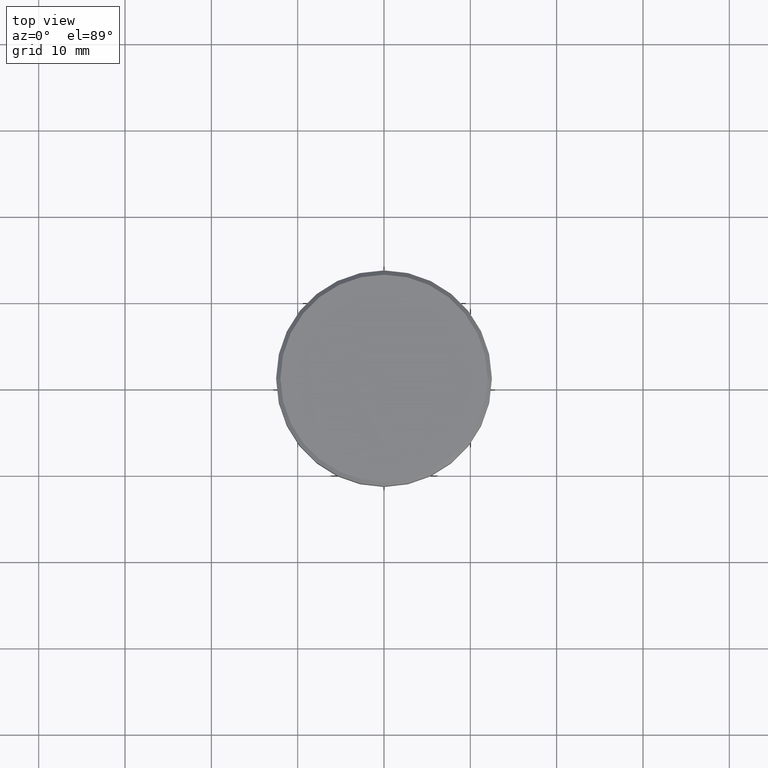
[diagram: clean part render]
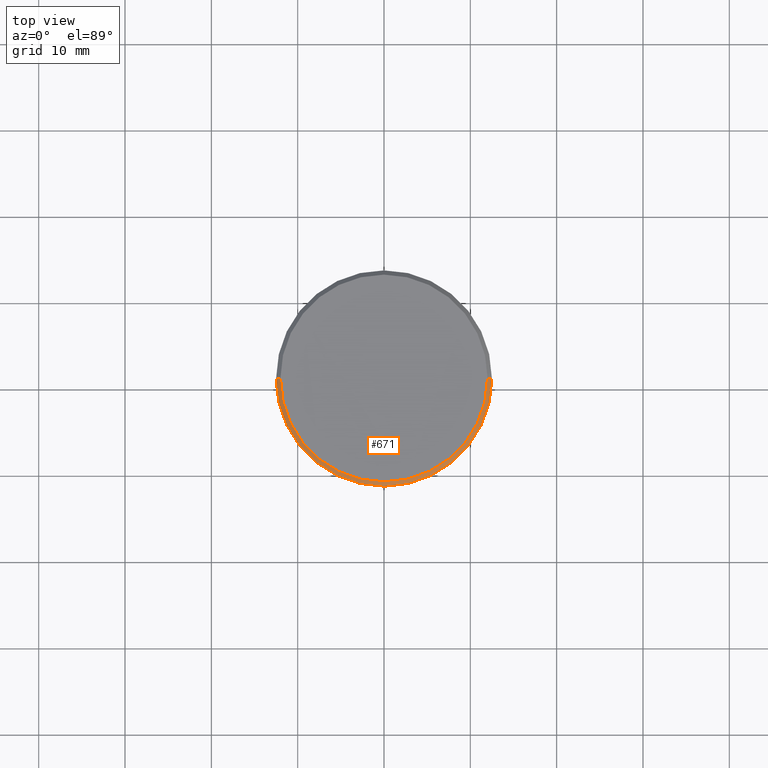
[diagram: same view with one face highlighted and labeled with its STEP entity id]
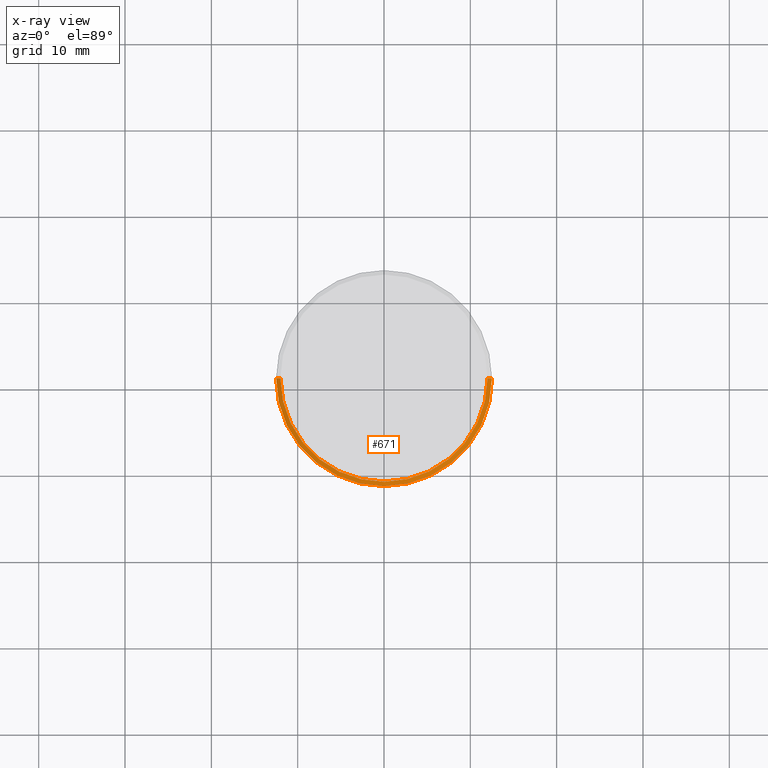
[diagram: x-ray of the same camera — body ghosted, the highlighted face saturated]
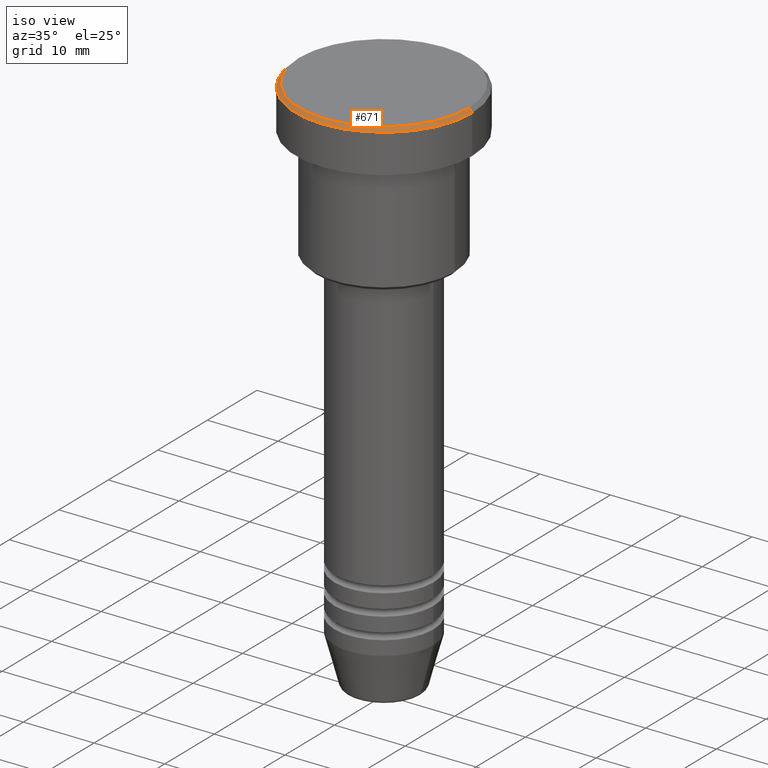
[diagram: same view with one face highlighted and labeled with its STEP entity id]
A machine part, top view. The second image highlights one B-rep face of the part: STEP entity #671.
The next image is the same camera in x-ray: the body ghosted, the highlighted face saturated — about 0% of this face is hidden behind the body in this view.
A second angle (iso view) of the same face is appended — the face is thin or edge-on in the first view.
In plain terms, the highlighted conical surface has half-angle 45 deg.
Its self-contained STEP definition (entity closure, byte-faithful):
#36 = CARTESIAN_POINT ( 'NONE',  ( -12.00000000000000355, 0.000000000000000000, 0.000000000000000000 ) ) ;
#72 = CARTESIAN_POINT ( 'NONE',  ( 0.000000000000000000, 0.000000000000000000, 0.000000000000000000 ) ) ;
#76 = CARTESIAN_POINT ( 'NONE',  ( 12.00000000000000355, 1.469576158976824342E-15, 0.000000000000000000 ) ) ;
#115 = VERTEX_POINT ( 'NONE', #36 ) ;
#131 = VECTOR ( 'NONE', #1145, 999.9999999999998863 ) ;
#141 = LINE ( 'NONE', #785, #131 ) ;
#157 = VERTEX_POINT ( 'NONE', #604 ) ;
#179 = AXIS2_PLACEMENT_3D ( 'NONE', #517, #312, #621 ) ;
#202 = CIRCLE ( 'NONE', #279, 12.00000000000000355 ) ;
#279 = AXIS2_PLACEMENT_3D ( 'NONE', #72, #714, #984 ) ;
#312 = DIRECTION ( 'NONE',  ( 0.000000000000000000, 0.000000000000000000, -1.000000000000000000 ) ) ;
#318 = ORIENTED_EDGE ( 'NONE', *, *, #642, .F. ) ;
#353 = CIRCLE ( 'NONE', #179, 12.50000000000000000 ) ;
#432 = DIRECTION ( 'NONE',  ( 0.7071067811865462405, 8.659560562354918067E-17, -0.7071067811865489050 ) ) ;
#436 = DIRECTION ( 'NONE',  ( 0.000000000000000000, 0.000000000000000000, -1.000000000000000000 ) ) ;
#481 = EDGE_LOOP ( 'NONE', ( #1147, #318, #729, #918 ) ) ;
#517 = CARTESIAN_POINT ( 'NONE',  ( 0.000000000000000000, 0.000000000000000000, -0.4999999999999988343 ) ) ;
#577 = EDGE_CURVE ( 'NONE', #1039, #938, #596, .T. ) ;
#589 = EDGE_CURVE ( 'NONE', #115, #157, #141, .T. ) ;
#593 = CARTESIAN_POINT ( 'NONE',  ( 12.00000000000000355, 1.500192328955507734E-15, 0.000000000000000000 ) ) ;
#596 = LINE ( 'NONE', #76, #1099 ) ;
#604 = CARTESIAN_POINT ( 'NONE',  ( -12.50000000000000000, 1.530808498934191521E-15, -0.4999999999999988343 ) ) ;
#621 = DIRECTION ( 'NONE',  ( 1.000000000000000000, 0.000000000000000000, 0.000000000000000000 ) ) ;
#630 = AXIS2_PLACEMENT_3D ( 'NONE', #979, #436, #968 ) ;
#642 = EDGE_CURVE ( 'NONE', #115, #1039, #202, .T. ) ;
#671 = ADVANCED_FACE ( 'NONE', ( #895 ), #801, .T. ) ;
#714 = DIRECTION ( 'NONE',  ( -0.000000000000000000, -0.000000000000000000, 1.000000000000000000 ) ) ;
#729 = ORIENTED_EDGE ( 'NONE', *, *, #589, .T. ) ;
#785 = CARTESIAN_POINT ( 'NONE',  ( -12.00000000000000355, 0.000000000000000000, 0.000000000000000000 ) ) ;
#801 = CONICAL_SURFACE ( 'NONE', #630, 12.00000000000000355, 0.7853981633974465026 ) ;
#895 = FACE_OUTER_BOUND ( 'NONE', #481, .T. ) ;
#918 = ORIENTED_EDGE ( 'NONE', *, *, #991, .F. ) ;
#938 = VERTEX_POINT ( 'NONE', #1130 ) ;
#968 = DIRECTION ( 'NONE',  ( -1.000000000000000000, 0.000000000000000000, 0.000000000000000000 ) ) ;
#979 = CARTESIAN_POINT ( 'NONE',  ( 0.000000000000000000, 0.000000000000000000, 0.000000000000000000 ) ) ;
#984 = DIRECTION ( 'NONE',  ( 1.000000000000000000, 0.000000000000000000, 0.000000000000000000 ) ) ;
#991 = EDGE_CURVE ( 'NONE', #938, #157, #353, .T. ) ;
#1039 = VERTEX_POINT ( 'NONE', #593 ) ;
#1099 = VECTOR ( 'NONE', #432, 999.9999999999998863 ) ;
#1130 = CARTESIAN_POINT ( 'NONE',  ( 12.50000000000000000, 0.000000000000000000, -0.4999999999999988343 ) ) ;
#1145 = DIRECTION ( 'NONE',  ( -0.7071067811865462405, 0.000000000000000000, -0.7071067811865489050 ) ) ;
#1147 = ORIENTED_EDGE ( 'NONE', *, *, #577, .F. ) ;